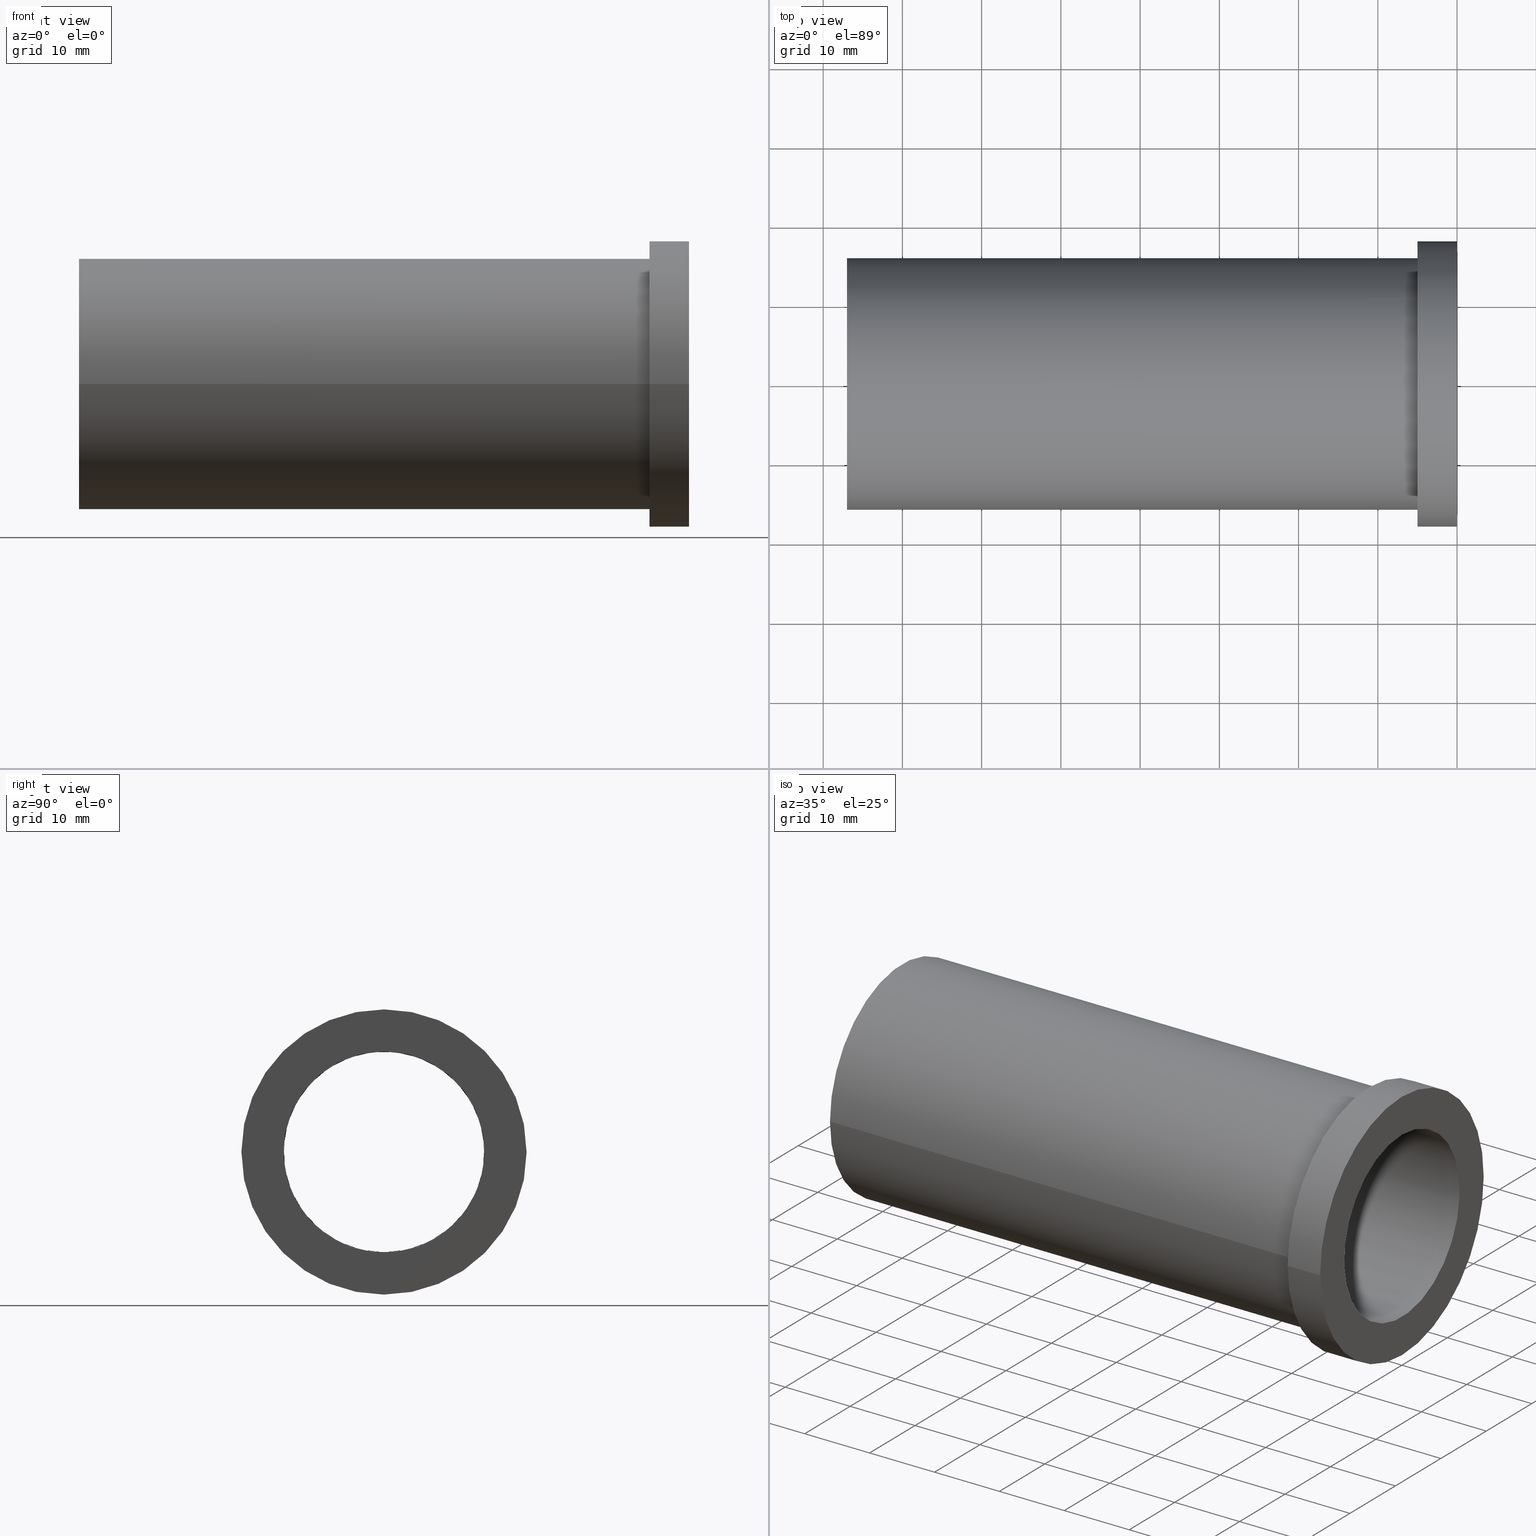
[diagram: canonical four-view strip — front | top / right | iso, engineering-drawing reading convention]
A machine part, canonical four-view strip (front | top / right | iso — engineering-drawing reading convention). The complete STEP part file that produces these views, byte-faithful:
ISO-10303-21;
HEADER;
/* Generated by software containing ST-Developer
 * from STEP Tools, Inc. (www.steptools.com) 
 */

FILE_DESCRIPTION(
/* description */ (''),
/* implementation_level */ '2;1');

FILE_NAME(
/* name */ 
'Z:\\\X2\C5F0AD6CC18C\X0\\\DRAWING_3D\\1. \X2\C778BCA4D130\X0\\\4. LAY
-OUT\\ACCESSORY&OTEHERS\\POWER MILLING CHUCK\\CK-COLLET\\INCH\\CK31.75
\\CK31.75-25.4\\CK31.75-25.4.stp',
/* time_stamp */ '2023-06-13T13:40:26+09:00',
/* author */ ('eos'),
/* organization */ (''),
/* preprocessor_version */ 'ST-DEVELOPER v18.1',
/* originating_system */ 'Autodesk Inventor 2022',
/* authorisation */ '');

FILE_SCHEMA (('AUTOMOTIVE_DESIGN { 1 0 10303 214 3 1 1 }'));
ENDSEC;

DATA;
#10=MECHANICAL_DESIGN_GEOMETRIC_PRESENTATION_REPRESENTATION('',(#13),#224);
#11=SHAPE_REPRESENTATION_RELATIONSHIP('SRR','None',#231,#12);
#12=ADVANCED_BREP_SHAPE_REPRESENTATION('',(#14),#223);
#13=STYLED_ITEM('',(#240),#14);
#14=MANIFOLD_SOLID_BREP('\X2\C194B9ACB4DC\X0\1',#115);
#15=FACE_BOUND('',#33,.T.);
#16=FACE_BOUND('',#37,.T.);
#17=FACE_BOUND('',#39,.T.);
#18=FACE_BOUND('',#42,.T.);
#19=PLANE('',#141);
#20=PLANE('',#148);
#21=PLANE('',#149);
#22=PLANE('',#153);
#23=FACE_OUTER_BOUND('',#31,.T.);
#24=FACE_OUTER_BOUND('',#32,.T.);
#25=FACE_OUTER_BOUND('',#34,.T.);
#26=FACE_OUTER_BOUND('',#35,.T.);
#27=FACE_OUTER_BOUND('',#36,.T.);
#28=FACE_OUTER_BOUND('',#38,.T.);
#29=FACE_OUTER_BOUND('',#40,.T.);
#30=FACE_OUTER_BOUND('',#41,.T.);
#31=EDGE_LOOP('',(#79,#80,#81,#82));
#32=EDGE_LOOP('',(#83));
#33=EDGE_LOOP('',(#84));
#34=EDGE_LOOP('',(#85,#86,#87,#88));
#35=EDGE_LOOP('',(#89,#90,#91,#92));
#36=EDGE_LOOP('',(#93));
#37=EDGE_LOOP('',(#94));
#38=EDGE_LOOP('',(#95));
#39=EDGE_LOOP('',(#96));
#40=EDGE_LOOP('',(#97,#98,#99,#100));
#41=EDGE_LOOP('',(#101));
#42=EDGE_LOOP('',(#102));
#43=LINE('',#197,#47);
#44=LINE('',#205,#48);
#45=LINE('',#210,#49);
#46=LINE('',#219,#50);
#47=VECTOR('',#160,12.7);
#48=VECTOR('',#171,12.688101);
#49=VECTOR('',#176,18.);
#50=VECTOR('',#189,15.8750000000001);
#51=CIRCLE('',#139,12.7);
#52=CIRCLE('',#140,12.7);
#53=CIRCLE('',#142,12.688101);
#54=CIRCLE('',#144,12.688101);
#55=CIRCLE('',#146,18.);
#56=CIRCLE('',#147,18.);
#57=CIRCLE('',#150,15.875);
#58=CIRCLE('',#152,15.8750000000001);
#59=VERTEX_POINT('',#194);
#60=VERTEX_POINT('',#196);
#61=VERTEX_POINT('',#200);
#62=VERTEX_POINT('',#203);
#63=VERTEX_POINT('',#207);
#64=VERTEX_POINT('',#209);
#65=VERTEX_POINT('',#214);
#66=VERTEX_POINT('',#217);
#67=EDGE_CURVE('',#59,#59,#51,.T.);
#68=EDGE_CURVE('',#59,#60,#43,.T.);
#69=EDGE_CURVE('',#60,#60,#52,.T.);
#70=EDGE_CURVE('',#61,#61,#53,.T.);
#71=EDGE_CURVE('',#62,#62,#54,.T.);
#72=EDGE_CURVE('',#62,#61,#44,.T.);
#73=EDGE_CURVE('',#63,#63,#55,.T.);
#74=EDGE_CURVE('',#63,#64,#45,.T.);
#75=EDGE_CURVE('',#64,#64,#56,.T.);
#76=EDGE_CURVE('',#65,#65,#57,.T.);
#77=EDGE_CURVE('',#66,#66,#58,.T.);
#78=EDGE_CURVE('',#66,#65,#46,.T.);
#79=ORIENTED_EDGE('',*,*,#67,.F.);
#80=ORIENTED_EDGE('',*,*,#68,.T.);
#81=ORIENTED_EDGE('',*,*,#69,.F.);
#82=ORIENTED_EDGE('',*,*,#68,.F.);
#83=ORIENTED_EDGE('',*,*,#69,.T.);
#84=ORIENTED_EDGE('',*,*,#70,.F.);
#85=ORIENTED_EDGE('',*,*,#71,.F.);
#86=ORIENTED_EDGE('',*,*,#72,.T.);
#87=ORIENTED_EDGE('',*,*,#70,.T.);
#88=ORIENTED_EDGE('',*,*,#72,.F.);
#89=ORIENTED_EDGE('',*,*,#73,.F.);
#90=ORIENTED_EDGE('',*,*,#74,.T.);
#91=ORIENTED_EDGE('',*,*,#75,.T.);
#92=ORIENTED_EDGE('',*,*,#74,.F.);
#93=ORIENTED_EDGE('',*,*,#73,.T.);
#94=ORIENTED_EDGE('',*,*,#67,.T.);
#95=ORIENTED_EDGE('',*,*,#76,.F.);
#96=ORIENTED_EDGE('',*,*,#71,.T.);
#97=ORIENTED_EDGE('',*,*,#77,.F.);
#98=ORIENTED_EDGE('',*,*,#78,.T.);
#99=ORIENTED_EDGE('',*,*,#76,.T.);
#100=ORIENTED_EDGE('',*,*,#78,.F.);
#101=ORIENTED_EDGE('',*,*,#75,.F.);
#102=ORIENTED_EDGE('',*,*,#77,.T.);
#103=CYLINDRICAL_SURFACE('',#138,12.7);
#104=CYLINDRICAL_SURFACE('',#143,12.688101);
#105=CYLINDRICAL_SURFACE('',#145,18.);
#106=CYLINDRICAL_SURFACE('',#151,15.8750000000001);
#107=ADVANCED_FACE('',(#23),#103,.F.);
#108=ADVANCED_FACE('',(#24,#15),#19,.T.);
#109=ADVANCED_FACE('',(#25),#104,.F.);
#110=ADVANCED_FACE('',(#26),#105,.T.);
#111=ADVANCED_FACE('',(#27,#16),#20,.T.);
#112=ADVANCED_FACE('',(#28,#17),#21,.T.);
#113=ADVANCED_FACE('',(#29),#106,.T.);
#114=ADVANCED_FACE('',(#30,#18),#22,.T.);
#115=CLOSED_SHELL('',(#107,#108,#109,#110,#111,#112,#113,#114));
#116=DERIVED_UNIT_ELEMENT(#119,1.);
#117=DERIVED_UNIT_ELEMENT(#226,-3.);
#118=DIMENSIONAL_EXPONENTS(1.,0.,0.,0.,0.,0.,0.);
#119=(
CONVERSION_BASED_UNIT('gram',#121)
MASS_UNIT()
NAMED_UNIT(#118)
);
#120=(
MASS_UNIT()
NAMED_UNIT(*)
SI_UNIT(.KILO.,.GRAM.)
);
#121=MASS_MEASURE_WITH_UNIT(MASS_MEASURE(0.001),#120);
#122=DERIVED_UNIT((#116,#117));
#123=MEASURE_REPRESENTATION_ITEM('density measure',
POSITIVE_RATIO_MEASURE(1.),#122);
#124=PROPERTY_DEFINITION_REPRESENTATION(#129,#126);
#125=PROPERTY_DEFINITION_REPRESENTATION(#130,#127);
#126=REPRESENTATION('material name',(#128),#223);
#127=REPRESENTATION('density',(#123),#223);
#128=DESCRIPTIVE_REPRESENTATION_ITEM('\X2\C77CBC18\X0\','\X2\C77CBC18\X0\');
#129=PROPERTY_DEFINITION('material property','material name',#233);
#130=PROPERTY_DEFINITION('material property','density of part',#233);
#131=DATE_TIME_ROLE('creation_date');
#132=APPLIED_DATE_AND_TIME_ASSIGNMENT(#133,#131,(#233));
#133=DATE_AND_TIME(#134,#135);
#134=CALENDAR_DATE(2023,13,6);
#135=LOCAL_TIME(0,0,0.,#136);
#136=COORDINATED_UNIVERSAL_TIME_OFFSET(0,0,.BEHIND.);
#137=AXIS2_PLACEMENT_3D('placement',#192,#154,#155);
#138=AXIS2_PLACEMENT_3D('',#193,#156,#157);
#139=AXIS2_PLACEMENT_3D('',#195,#158,#159);
#140=AXIS2_PLACEMENT_3D('',#198,#161,#162);
#141=AXIS2_PLACEMENT_3D('',#199,#163,#164);
#142=AXIS2_PLACEMENT_3D('',#201,#165,#166);
#143=AXIS2_PLACEMENT_3D('',#202,#167,#168);
#144=AXIS2_PLACEMENT_3D('',#204,#169,#170);
#145=AXIS2_PLACEMENT_3D('',#206,#172,#173);
#146=AXIS2_PLACEMENT_3D('',#208,#174,#175);
#147=AXIS2_PLACEMENT_3D('',#211,#177,#178);
#148=AXIS2_PLACEMENT_3D('',#212,#179,#180);
#149=AXIS2_PLACEMENT_3D('',#213,#181,#182);
#150=AXIS2_PLACEMENT_3D('',#215,#183,#184);
#151=AXIS2_PLACEMENT_3D('',#216,#185,#186);
#152=AXIS2_PLACEMENT_3D('',#218,#187,#188);
#153=AXIS2_PLACEMENT_3D('',#220,#190,#191);
#154=DIRECTION('axis',(0.,0.,1.));
#155=DIRECTION('refdir',(1.,0.,0.));
#156=DIRECTION('center_axis',(1.,0.,0.));
#157=DIRECTION('ref_axis',(0.,0.,-1.));
#158=DIRECTION('center_axis',(-1.,0.,0.));
#159=DIRECTION('ref_axis',(0.,0.,-1.));
#160=DIRECTION('',(-1.,0.,0.));
#161=DIRECTION('center_axis',(1.,0.,0.));
#162=DIRECTION('ref_axis',(0.,0.,-1.));
#163=DIRECTION('center_axis',(1.,0.,0.));
#164=DIRECTION('ref_axis',(0.,0.,-1.));
#165=DIRECTION('center_axis',(1.,0.,0.));
#166=DIRECTION('ref_axis',(0.,0.,1.));
#167=DIRECTION('center_axis',(-1.,0.,0.));
#168=DIRECTION('ref_axis',(0.,0.,1.));
#169=DIRECTION('center_axis',(1.,0.,0.));
#170=DIRECTION('ref_axis',(0.,0.,1.));
#171=DIRECTION('',(1.,0.,0.));
#172=DIRECTION('center_axis',(1.,0.,0.));
#173=DIRECTION('ref_axis',(0.,1.,0.));
#174=DIRECTION('center_axis',(1.,0.,0.));
#175=DIRECTION('ref_axis',(0.,0.,-1.));
#176=DIRECTION('',(-1.,0.,0.));
#177=DIRECTION('center_axis',(1.,0.,0.));
#178=DIRECTION('ref_axis',(0.,0.,-1.));
#179=DIRECTION('center_axis',(1.,0.,0.));
#180=DIRECTION('ref_axis',(0.,0.,-1.));
#181=DIRECTION('center_axis',(-1.,0.,0.));
#182=DIRECTION('ref_axis',(0.,0.,1.));
#183=DIRECTION('center_axis',(1.,0.,0.));
#184=DIRECTION('ref_axis',(0.,0.,-1.));
#185=DIRECTION('center_axis',(1.,0.,0.));
#186=DIRECTION('ref_axis',(0.,1.,0.));
#187=DIRECTION('center_axis',(1.,0.,0.));
#188=DIRECTION('ref_axis',(0.,0.,-1.));
#189=DIRECTION('',(-1.,0.,0.));
#190=DIRECTION('center_axis',(-1.,0.,0.));
#191=DIRECTION('ref_axis',(0.,0.,1.));
#192=CARTESIAN_POINT('',(0.,0.,0.));
#193=CARTESIAN_POINT('Origin',(-29.,0.,0.));
#194=CARTESIAN_POINT('',(0.,-1.55530143491714E-15,12.7));
#195=CARTESIAN_POINT('Origin',(0.,0.,0.));
#196=CARTESIAN_POINT('',(-58.,-1.55530143491714E-15,12.7));
#197=CARTESIAN_POINT('',(-29.,-1.55530143491714E-15,12.7));
#198=CARTESIAN_POINT('Origin',(-58.,0.,0.));
#199=CARTESIAN_POINT('Origin',(-58.,0.,0.));
#200=CARTESIAN_POINT('',(-58.,1.55384422769083E-15,-12.688101));
#201=CARTESIAN_POINT('Origin',(-58.,0.,0.));
#202=CARTESIAN_POINT('Origin',(-67.,0.,0.));
#203=CARTESIAN_POINT('',(-77.,-1.55384422769083E-15,-12.688101));
#204=CARTESIAN_POINT('Origin',(-77.,0.,0.));
#205=CARTESIAN_POINT('',(-67.,-1.55384422769083E-15,-12.688101));
#206=CARTESIAN_POINT('Origin',(-2.49999999999999,0.,0.));
#207=CARTESIAN_POINT('',(5.55111512312578E-15,-18.,-2.20436423846524E-15));
#208=CARTESIAN_POINT('Origin',(5.55111512312578E-15,0.,0.));
#209=CARTESIAN_POINT('',(-4.99999999999999,-18.,-2.20436423846524E-15));
#210=CARTESIAN_POINT('',(-2.49999999999999,-18.,-2.20436423846524E-15));
#211=CARTESIAN_POINT('Origin',(-4.99999999999999,0.,0.));
#212=CARTESIAN_POINT('Origin',(1.24504562061398E-31,2.26081779560032E-14,
0.));
#213=CARTESIAN_POINT('Origin',(-77.,15.875,0.));
#214=CARTESIAN_POINT('',(-77.,-15.8750000000001,-1.94412679364643E-15));
#215=CARTESIAN_POINT('Origin',(-77.,0.,0.));
#216=CARTESIAN_POINT('Origin',(-41.,0.,0.));
#217=CARTESIAN_POINT('',(-5.,-15.8750000000001,-1.94412679364643E-15));
#218=CARTESIAN_POINT('Origin',(-5.,0.,0.));
#219=CARTESIAN_POINT('',(-41.,-15.8750000000001,-1.94412679364643E-15));
#220=CARTESIAN_POINT('Origin',(-4.99999999999999,18.,0.));
#221=UNCERTAINTY_MEASURE_WITH_UNIT(LENGTH_MEASURE(0.01),#225,
'DISTANCE_ACCURACY_VALUE',
'Maximum model space distance between geometric entities at asserted c
onnectivities');
#222=UNCERTAINTY_MEASURE_WITH_UNIT(LENGTH_MEASURE(0.01),#225,
'DISTANCE_ACCURACY_VALUE',
'Maximum model space distance between geometric entities at asserted c
onnectivities');
#223=(
GEOMETRIC_REPRESENTATION_CONTEXT(3)
GLOBAL_UNCERTAINTY_ASSIGNED_CONTEXT((#221))
GLOBAL_UNIT_ASSIGNED_CONTEXT((#225,#227,#228))
REPRESENTATION_CONTEXT('','3D')
);
#224=(
GEOMETRIC_REPRESENTATION_CONTEXT(3)
GLOBAL_UNCERTAINTY_ASSIGNED_CONTEXT((#222))
GLOBAL_UNIT_ASSIGNED_CONTEXT((#225,#227,#228))
REPRESENTATION_CONTEXT('','3D')
);
#225=(
LENGTH_UNIT()
NAMED_UNIT(*)
SI_UNIT(.MILLI.,.METRE.)
);
#226=(
LENGTH_UNIT()
NAMED_UNIT(*)
SI_UNIT(.CENTI.,.METRE.)
);
#227=(
NAMED_UNIT(*)
PLANE_ANGLE_UNIT()
SI_UNIT($,.RADIAN.)
);
#228=(
NAMED_UNIT(*)
SI_UNIT($,.STERADIAN.)
SOLID_ANGLE_UNIT()
);
#229=SHAPE_DEFINITION_REPRESENTATION(#230,#231);
#230=PRODUCT_DEFINITION_SHAPE('',$,#233);
#231=SHAPE_REPRESENTATION('',(#137),#223);
#232=PRODUCT_DEFINITION_CONTEXT('part definition',#237,'design');
#233=PRODUCT_DEFINITION('LO-CK19.05-6','LO-CK31.75-25.4',#234,#232);
#234=PRODUCT_DEFINITION_FORMATION('',$,#239);
#235=PRODUCT_RELATED_PRODUCT_CATEGORY('LO-CK31.75-25.4',
'LO-CK31.75-25.4',(#239));
#236=APPLICATION_PROTOCOL_DEFINITION('international standard',
'automotive_design',2009,#237);
#237=APPLICATION_CONTEXT(
'Core Data for Automotive Mechanical Design Process');
#238=PRODUCT_CONTEXT('part definition',#237,'mechanical');
#239=PRODUCT('LO-CK19.05-6','LO-CK31.75-25.4',$,(#238));
#240=PRESENTATION_STYLE_ASSIGNMENT((#241));
#241=SURFACE_STYLE_USAGE(.BOTH.,#244);
#242=SURFACE_STYLE_RENDERING_WITH_PROPERTIES($,#248,(#243));
#243=SURFACE_STYLE_TRANSPARENT(0.339999973773956);
#244=SURFACE_SIDE_STYLE('',(#245,#242));
#245=SURFACE_STYLE_FILL_AREA(#246);
#246=FILL_AREA_STYLE('',(#247));
#247=FILL_AREA_STYLE_COLOUR('',#248);
#248=COLOUR_RGB('',0.925490196078431,0.945098039215686,0.937254901960784);
ENDSEC;
END-ISO-10303-21;
